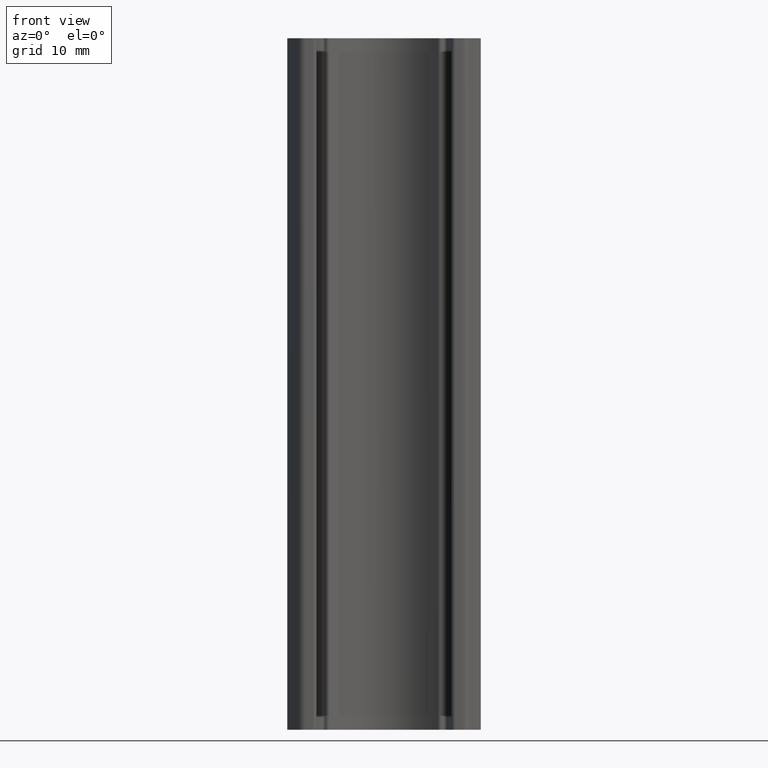
[diagram: clean part render]
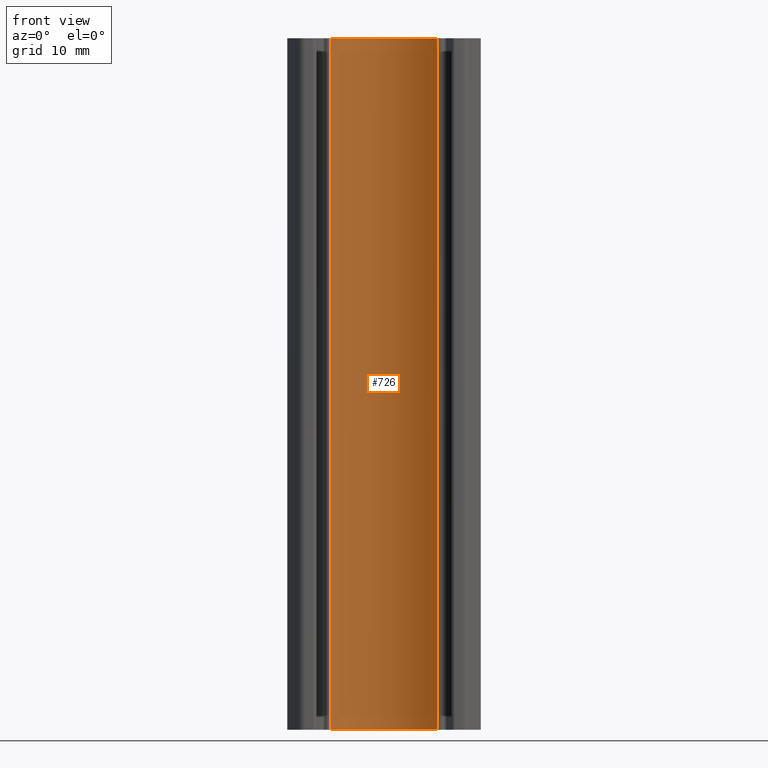
[diagram: same view with one face highlighted and labeled with its STEP entity id]
A machine part, front view. The second image highlights one B-rep face of the part: STEP entity #726.
In plain terms, the highlighted cylindrical surface (partial cylindrical patch) has radius 10 mm, axis along (0, 0, 1).
Its self-contained STEP definition (entity closure, byte-faithful):
#63=FACE_OUTER_BOUND('',#101,.T.);
#101=EDGE_LOOP('',(#590,#591,#592,#593));
#104=LINE('',#1061,#162);
#161=LINE('',#1268,#219);
#162=VECTOR('',#825,100.);
#219=VECTOR('',#1044,100.);
#268=CIRCLE('',#815,9.99999999995869);
#269=CIRCLE('',#816,9.99999999995869);
#270=VERTEX_POINT('',#1057);
#272=VERTEX_POINT('',#1060);
#340=VERTEX_POINT('',#1264);
#341=VERTEX_POINT('',#1266);
#343=EDGE_CURVE('',#270,#272,#104,.T.);
#447=EDGE_CURVE('',#340,#341,#161,.T.);
#448=EDGE_CURVE('',#340,#270,#268,.T.);
#449=EDGE_CURVE('',#272,#341,#269,.T.);
#590=ORIENTED_EDGE('',*,*,#448,.F.);
#591=ORIENTED_EDGE('',*,*,#447,.T.);
#592=ORIENTED_EDGE('',*,*,#449,.F.);
#593=ORIENTED_EDGE('',*,*,#343,.F.);
#690=CYLINDRICAL_SURFACE('',#814,9.99999999995869);
#726=ADVANCED_FACE('',(#63),#690,.F.);
#814=AXIS2_PLACEMENT_3D('',#1269,#1045,#1046);
#815=AXIS2_PLACEMENT_3D('',#1270,#1047,#1048);
#816=AXIS2_PLACEMENT_3D('',#1271,#1049,#1050);
#825=DIRECTION('',(0.,0.,1.));
#1044=DIRECTION('',(0.,0.,1.));
#1045=DIRECTION('center_axis',(0.,0.,1.));
#1046=DIRECTION('ref_axis',(0.775288329611361,0.631607477764811,0.));
#1047=DIRECTION('center_axis',(0.,0.,1.));
#1048=DIRECTION('ref_axis',(0.775288329611361,0.631607477764811,0.));
#1049=DIRECTION('center_axis',(0.,0.,-1.));
#1050=DIRECTION('ref_axis',(0.775288329611361,0.631607477764811,0.));
#1057=CARTESIAN_POINT('',(-7.7528661522989,6.31609582128735,0.));
#1060=CARTESIAN_POINT('',(-7.75286615229891,6.31609582128735,100.));
#1061=CARTESIAN_POINT('',(-7.7528661522989,6.31609582128735,0.));
#1264=CARTESIAN_POINT('',(7.75288329608229,6.31607477762259,0.));
#1266=CARTESIAN_POINT('',(7.75288329608229,6.31607477762259,100.));
#1268=CARTESIAN_POINT('',(7.75288329608229,6.31607477762259,0.));
#1269=CARTESIAN_POINT('Origin',(0.,0.,0.));
#1270=CARTESIAN_POINT('Origin',(0.,0.,0.));
#1271=CARTESIAN_POINT('Origin',(0.,0.,100.));